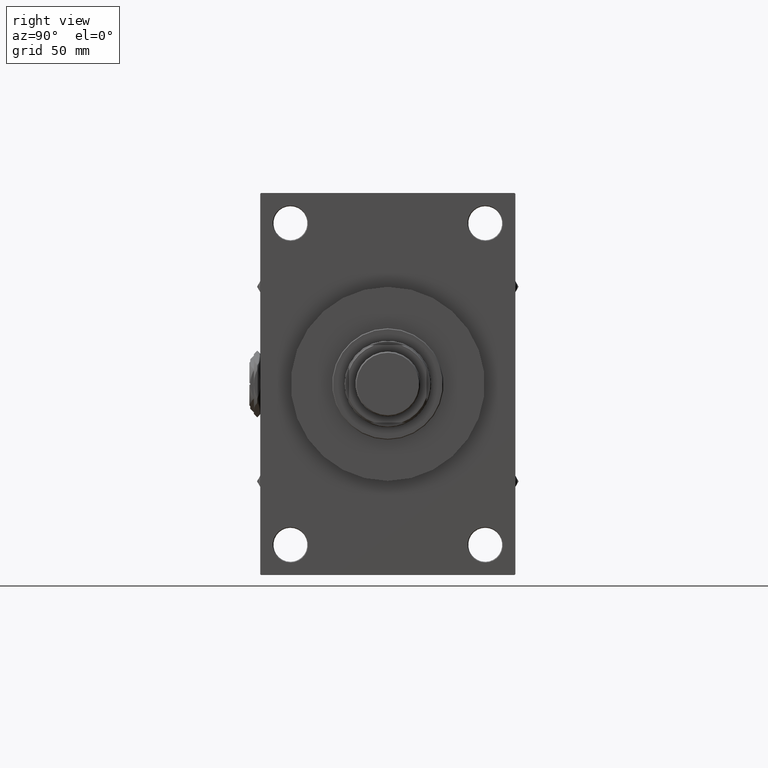
[diagram: clean part render]
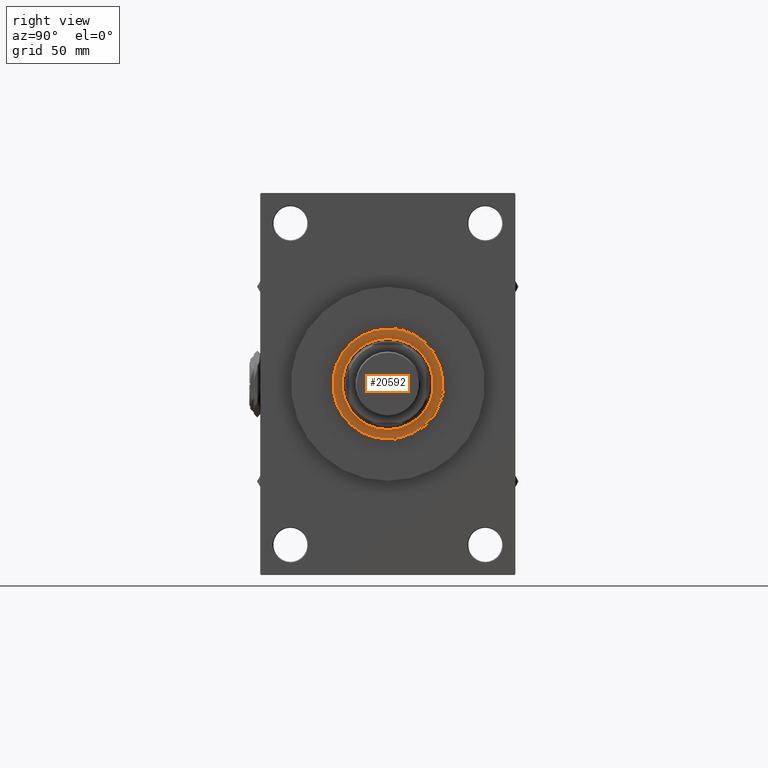
[diagram: same view with one face highlighted and labeled with its STEP entity id]
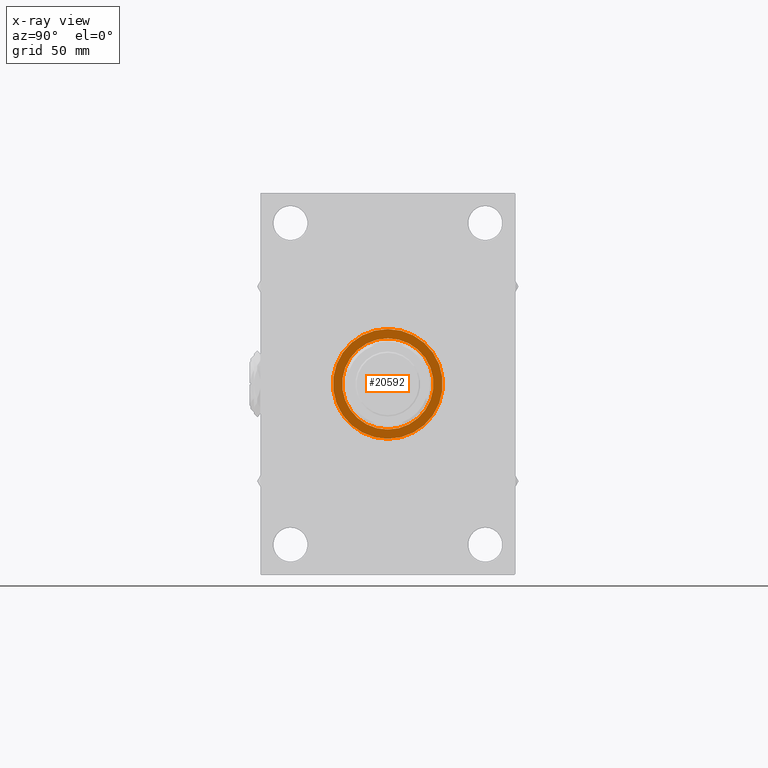
[diagram: x-ray of the same camera — body ghosted, the highlighted face saturated]
A machine part, right view. The second image highlights one B-rep face of the part: STEP entity #20592.
The next image is the same camera in x-ray: the body ghosted, the highlighted face saturated — about 0% of this face is hidden behind the body in this view.
In plain terms, the highlighted planar face has unit normal (1, -0, -0).
Its self-contained STEP definition (entity closure, byte-faithful):
#264 = DIRECTION ( 'NONE',  ( 1.000000000000000000, 0.000000000000000000, 0.000000000000000000 ) ) ;
#687 = EDGE_CURVE ( 'NONE', #43426, #2982, #18623, .T. ) ;
#2539 = EDGE_CURVE ( 'NONE', #46675, #31738, #26793, .T. ) ;
#2579 = DIRECTION ( 'NONE',  ( 1.000000000000000000, 0.000000000000000000, -0.000000000000000000 ) ) ;
#2982 = VERTEX_POINT ( 'NONE', #41669 ) ;
#3705 = CARTESIAN_POINT ( 'NONE',  ( 0.000000000000000000, 0.000000000000000000, 53.26000000000000512 ) ) ;
#4297 = CARTESIAN_POINT ( 'NONE',  ( 0.000000000000000000, 0.000000000000000000, 53.26000000000000512 ) ) ;
#8525 = ORIENTED_EDGE ( 'NONE', *, *, #2539, .T. ) ;
#9195 = EDGE_CURVE ( 'NONE', #31738, #46675, #31826, .T. ) ;
#10215 = ORIENTED_EDGE ( 'NONE', *, *, #687, .F. ) ;
#12606 = DIRECTION ( 'NONE',  ( 0.000000000000000000, 0.000000000000000000, 1.000000000000000000 ) ) ;
#13271 = AXIS2_PLACEMENT_3D ( 'NONE', #48861, #25621, #49118 ) ;
#13690 = FACE_BOUND ( 'NONE', #47285, .T. ) ;
#15011 = AXIS2_PLACEMENT_3D ( 'NONE', #4297, #12606, #264 ) ;
#16736 = EDGE_CURVE ( 'NONE', #2982, #43426, #29558, .T. ) ;
#17707 = CARTESIAN_POINT ( 'NONE',  ( 29.50000000000000355, 0.000000000000000000, 53.26000000000000512 ) ) ;
#18623 = CIRCLE ( 'NONE', #35573, 29.50000000000000355 ) ;
#20271 = DIRECTION ( 'NONE',  ( 0.000000000000000000, 0.000000000000000000, 1.000000000000000000 ) ) ;
#20592 = ADVANCED_FACE ( 'NONE', ( #13690, #29115 ), #44515, .T. ) ;
#23155 = DIRECTION ( 'NONE',  ( 0.000000000000000000, 0.000000000000000000, 1.000000000000000000 ) ) ;
#25621 = DIRECTION ( 'NONE',  ( 0.000000000000000000, 0.000000000000000000, 1.000000000000000000 ) ) ;
#26061 = DIRECTION ( 'NONE',  ( 0.000000000000000000, 0.000000000000000000, 1.000000000000000000 ) ) ;
#26793 = CIRCLE ( 'NONE', #40485, 35.49999999999997868 ) ;
#29115 = FACE_OUTER_BOUND ( 'NONE', #39695, .T. ) ;
#29558 = CIRCLE ( 'NONE', #15011, 29.50000000000000355 ) ;
#31738 = VERTEX_POINT ( 'NONE', #42349 ) ;
#31826 = CIRCLE ( 'NONE', #13271, 35.49999999999997868 ) ;
#31893 = CARTESIAN_POINT ( 'NONE',  ( 0.000000000000000000, 0.000000000000000000, 53.26000000000000512 ) ) ;
#32153 = DIRECTION ( 'NONE',  ( 1.000000000000000000, 0.000000000000000000, 0.000000000000000000 ) ) ;
#35573 = AXIS2_PLACEMENT_3D ( 'NONE', #31893, #20271, #32153 ) ;
#36621 = CARTESIAN_POINT ( 'NONE',  ( 35.49999999999997868, 4.378112306951785491E-15, 53.26000000000000512 ) ) ;
#36623 = ORIENTED_EDGE ( 'NONE', *, *, #9195, .T. ) ;
#37183 = CARTESIAN_POINT ( 'NONE',  ( 0.000000000000000000, 0.000000000000000000, 53.26000000000000512 ) ) ;
#39695 = EDGE_LOOP ( 'NONE', ( #36623, #8525 ) ) ;
#40485 = AXIS2_PLACEMENT_3D ( 'NONE', #3705, #23155, #49431 ) ;
#41669 = CARTESIAN_POINT ( 'NONE',  ( -29.50000000000000355, 3.612708057484692393E-15, 53.26000000000000512 ) ) ;
#42349 = CARTESIAN_POINT ( 'NONE',  ( -35.49999999999997868, 0.000000000000000000, 53.26000000000000512 ) ) ;
#43400 = AXIS2_PLACEMENT_3D ( 'NONE', #37183, #26061, #2579 ) ;
#43426 = VERTEX_POINT ( 'NONE', #17707 ) ;
#44515 = PLANE ( 'NONE',  #43400 ) ;
#45771 = ORIENTED_EDGE ( 'NONE', *, *, #16736, .F. ) ;
#46675 = VERTEX_POINT ( 'NONE', #36621 ) ;
#47285 = EDGE_LOOP ( 'NONE', ( #10215, #45771 ) ) ;
#48861 = CARTESIAN_POINT ( 'NONE',  ( 0.000000000000000000, 0.000000000000000000, 53.26000000000000512 ) ) ;
#49118 = DIRECTION ( 'NONE',  ( 1.000000000000000000, 0.000000000000000000, 0.000000000000000000 ) ) ;
#49431 = DIRECTION ( 'NONE',  ( 1.000000000000000000, 0.000000000000000000, 0.000000000000000000 ) ) ;